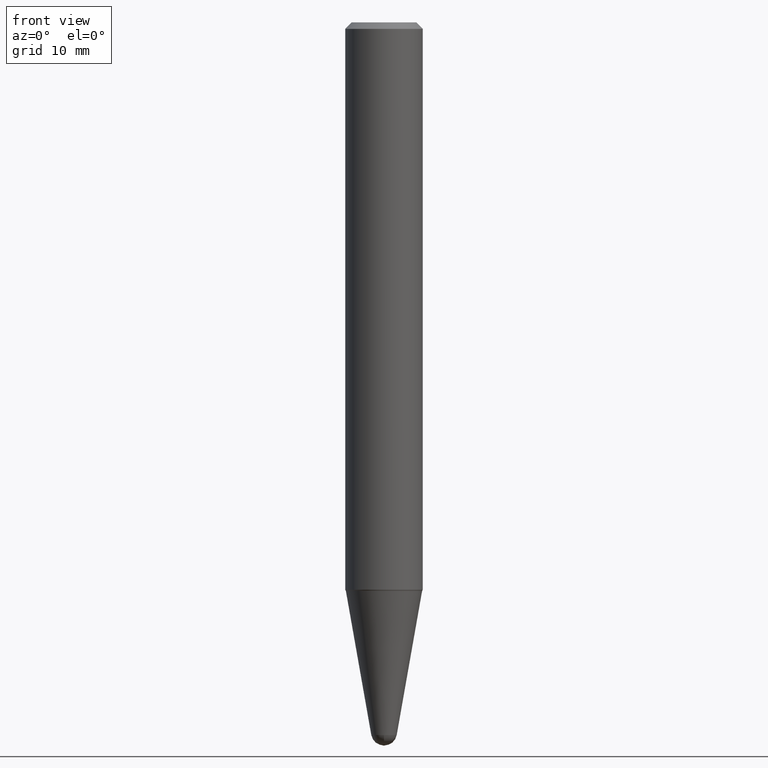
[diagram: clean part render]
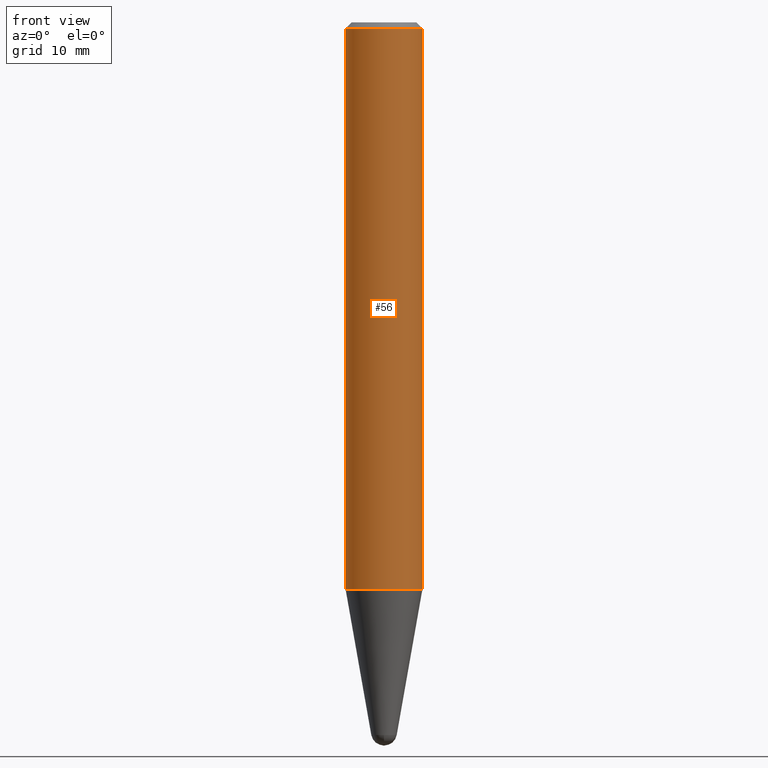
[diagram: same view with one face highlighted and labeled with its STEP entity id]
A machine part, front view. The second image highlights one B-rep face of the part: STEP entity #56.
In plain terms, the highlighted cylindrical surface (partial cylindrical patch) has radius 4.7625 mm, axis along (-0, 0, 1).
Its self-contained STEP definition (entity closure, byte-faithful):
#10 = EDGE_CURVE ( 'NONE', #226, #13, #335, .T. ) ;
#13 = VERTEX_POINT ( 'NONE', #128 ) ;
#24 = LINE ( 'NONE', #314, #49 ) ;
#49 = VECTOR ( 'NONE', #241, 39.37007874015748143 ) ;
#52 = LINE ( 'NONE', #172, #449 ) ;
#54 = DIRECTION ( 'NONE',  ( 1.000000000000000000, -6.982962677686265922E-15, 4.852736867747361162E-29 ) ) ;
#56 = ADVANCED_FACE ( 'NONE', ( #134 ), #270, .T. ) ;
#64 = CARTESIAN_POINT ( 'NONE',  ( 6.714318813664267806E-29, -9.586267787043473841E-15, -2.745616217504903922 ) ) ;
#92 = DIRECTION ( 'NONE',  ( -2.445468806185136597E-29, 3.491481338843145583E-15, 1.000000000000000000 ) ) ;
#94 = CARTESIAN_POINT ( 'NONE',  ( 0.1875000000000003608, -1.089557328910965200E-14, -2.745616217504903922 ) ) ;
#99 = DIRECTION ( 'NONE',  ( -2.445468806185136877E-29, 3.491481338843145188E-15, 1.000000000000000000 ) ) ;
#106 = CIRCLE ( 'NONE', #323, 0.1875000000000003608 ) ;
#116 = ORIENTED_EDGE ( 'NONE', *, *, #142, .T. ) ;
#128 = CARTESIAN_POINT ( 'NONE',  ( 0.1874999999999999722, -1.418414293905023123E-15, -0.03125000000000003469 ) ) ;
#134 = FACE_OUTER_BOUND ( 'NONE', #265, .T. ) ;
#139 = EDGE_CURVE ( 'NONE', #394, #226, #52, .T. ) ;
#142 = EDGE_CURVE ( 'NONE', #163, #13, #24, .T. ) ;
#163 = VERTEX_POINT ( 'NONE', #94 ) ;
#172 = CARTESIAN_POINT ( 'NONE',  ( -0.1875000000000001943, 1.332267629550191398E-15, 5.931196827434205055E-16 ) ) ;
#198 = CARTESIAN_POINT ( 'NONE',  ( 7.642090019328561499E-31, -1.091087918388484350E-16, -0.03125000000000003469 ) ) ;
#214 = CARTESIAN_POINT ( 'NONE',  ( -0.1875000000000003608, -8.254000157493284415E-15, -2.745616217504903922 ) ) ;
#226 = VERTEX_POINT ( 'NONE', #268 ) ;
#241 = DIRECTION ( 'NONE',  ( -2.445468806185136877E-29, 3.491481338843145188E-15, 1.000000000000000000 ) ) ;
#250 = AXIS2_PLACEMENT_3D ( 'NONE', #409, #92, #54 ) ;
#258 = EDGE_CURVE ( 'NONE', #394, #163, #106, .T. ) ;
#265 = EDGE_LOOP ( 'NONE', ( #301, #336, #116, #296 ) ) ;
#268 = CARTESIAN_POINT ( 'NONE',  ( -0.1874999999999999722, -3.515420659890970467E-15, -0.03125000000000003469 ) ) ;
#270 = CYLINDRICAL_SURFACE ( 'NONE', #250, 0.1875000000000001943 ) ;
#296 = ORIENTED_EDGE ( 'NONE', *, *, #10, .F. ) ;
#301 = ORIENTED_EDGE ( 'NONE', *, *, #139, .F. ) ;
#305 = DIRECTION ( 'NONE',  ( 1.000000000000000000, -6.982962677686266711E-15, 0.000000000000000000 ) ) ;
#314 = CARTESIAN_POINT ( 'NONE',  ( 0.1875000000000001943, -1.309305502066174022E-15, 5.931196827434387479E-16 ) ) ;
#323 = AXIS2_PLACEMENT_3D ( 'NONE', #64, #349, #391 ) ;
#335 = CIRCLE ( 'NONE', #346, 0.1874999999999999722 ) ;
#336 = ORIENTED_EDGE ( 'NONE', *, *, #258, .T. ) ;
#346 = AXIS2_PLACEMENT_3D ( 'NONE', #198, #441, #305 ) ;
#349 = DIRECTION ( 'NONE',  ( -2.445468806185136597E-29, 3.491481338843145583E-15, 1.000000000000000000 ) ) ;
#391 = DIRECTION ( 'NONE',  ( 1.000000000000000000, -6.982962677686269866E-15, 0.000000000000000000 ) ) ;
#394 = VERTEX_POINT ( 'NONE', #214 ) ;
#409 = CARTESIAN_POINT ( 'NONE',  ( -1.450455682483482035E-44, 2.070866303999251778E-30, 5.931196827434296760E-16 ) ) ;
#441 = DIRECTION ( 'NONE',  ( -2.445468806185136597E-29, 3.491481338843145583E-15, 1.000000000000000000 ) ) ;
#449 = VECTOR ( 'NONE', #99, 39.37007874015748143 ) ;